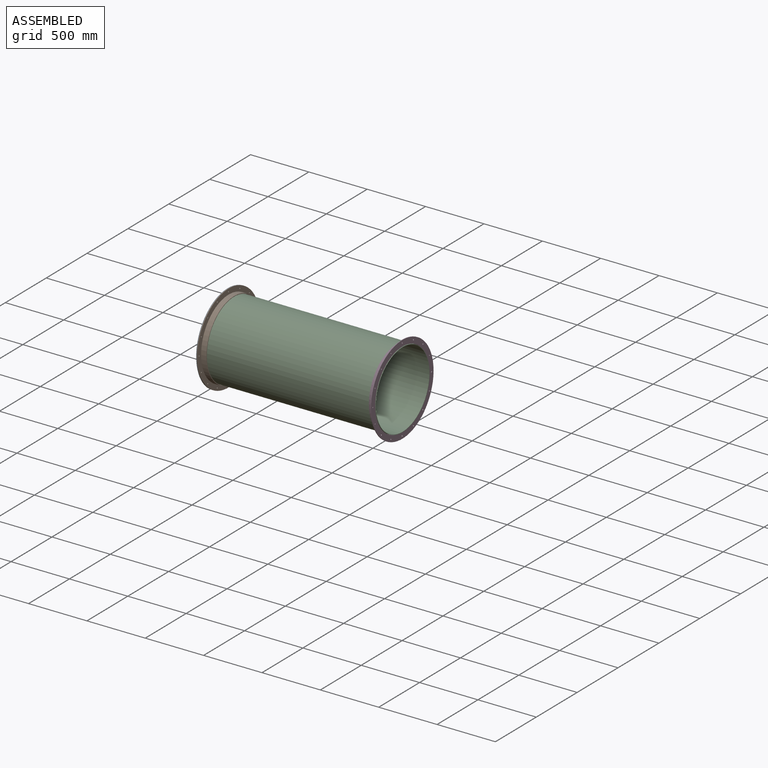
[diagram: assembled view]
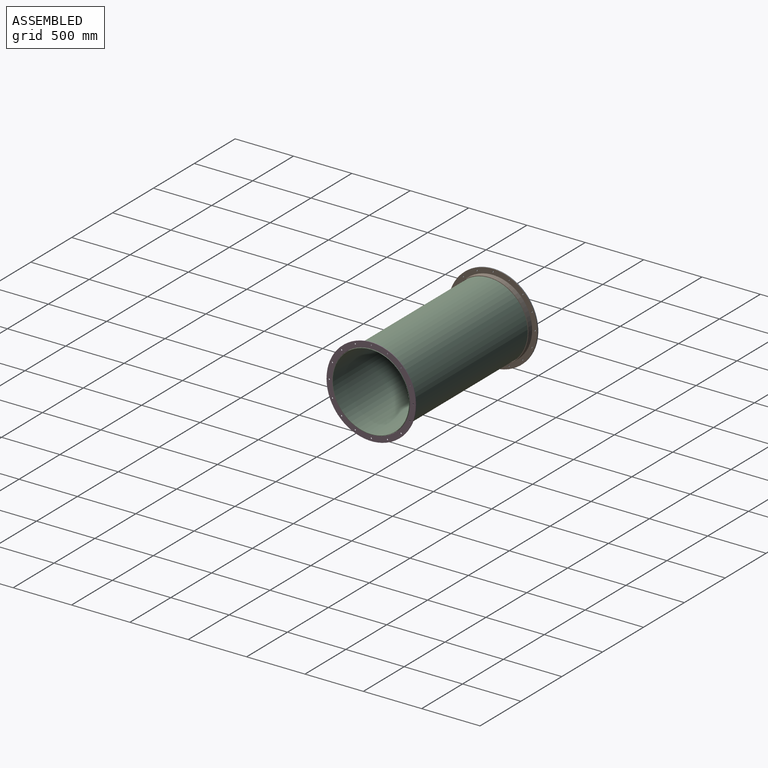
[diagram: assembled view, second angle]
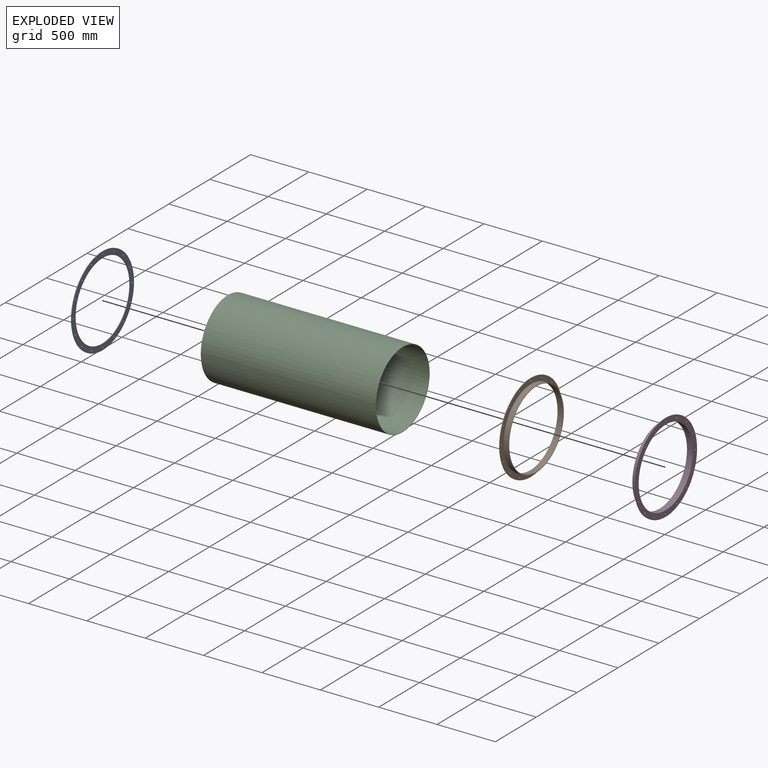
[diagram: exploded view]
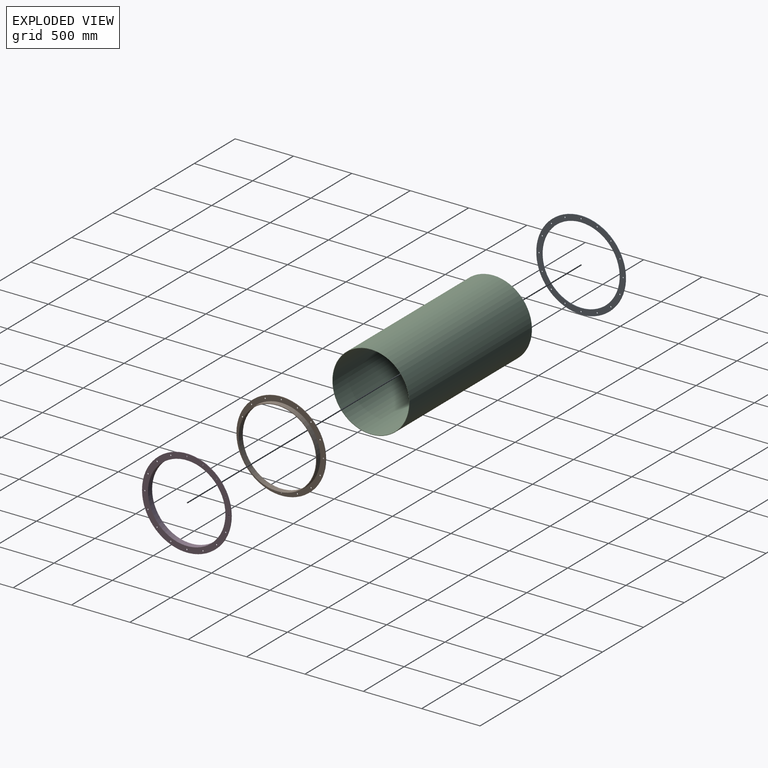
[diagram: exploded view, second angle]
ASSEMBLY  parts=4 mates=3
PART A: 20 faces, bbox 765.3x765.3x4.8 mm
  f0: cylinder r=5.56mm len=11.11mm, axis (0,0,-1), area 166.3mm2, adj f18,f19
  f1: cylinder r=5.56mm len=11.11mm, axis (0,0,-1), area 166.3mm2, adj f18,f19
  f2: cylinder r=5.56mm len=11.11mm, axis (0,0,-1), area 166.3mm2, adj f18,f19
  f3: cylinder r=5.56mm len=11.11mm, axis (0,0,-1), area 166.3mm2, adj f18,f19
  f4: cylinder r=5.56mm len=11.11mm, axis (0,0,-1), area 166.3mm2, adj f18,f19
  f5: cylinder r=5.56mm len=11.11mm, axis (0,0,-1), area 166.3mm2, adj f18,f19
  f6: cylinder r=5.56mm len=11.11mm, axis (0,0,-1), area 166.3mm2, adj f18,f19
  f7: cylinder r=5.56mm len=11.11mm, axis (0,0,-1), area 166.3mm2, adj f18,f19
  f8: cylinder r=5.56mm len=11.11mm, axis (0,0,-1), area 166.3mm2, adj f18,f19
  f9: cylinder r=5.56mm len=11.11mm, axis (0,0,-1), area 166.3mm2, adj f18,f19
  f10: cylinder r=5.56mm len=11.11mm, axis (0,0,-1), area 166.3mm2, adj f18,f19
  f11: cylinder r=5.56mm len=11.11mm, axis (0,0,-1), area 166.3mm2, adj f18,f19
  f12: cylinder r=5.56mm len=11.11mm, axis (0,0,-1), area 166.3mm2, adj f18,f19
  f13: cylinder r=5.56mm len=11.11mm, axis (0,0,-1), area 166.3mm2, adj f18,f19
  f14: cylinder r=5.56mm len=11.11mm, axis (0,0,-1), area 166.3mm2, adj f18,f19
  f15: cylinder r=331.85mm len=663.7mm, axis (0,0,-1), area 9930.2mm2, adj f18,f19
  f16: cylinder r=5.56mm len=11.11mm, axis (0,0,-1), area 166.3mm2, adj f18,f19
  f17: cylinder r=382.65mm len=765.3mm, axis (0,0,-1), area 11450.3mm2, adj f18,f19
  f18: plane 765.3x765.3mm, normal (0,0,1), area 112477.7mm2, adj f0,f1,f2,f3,f4,f5,f6,f7
  f19: plane 765.3x765.3mm, normal (0,0,-1), area 112477.7mm2, adj f0,f1,f2,f3,f4,f5,f6,f7
PART B: 22 faces, bbox 765.3x50.8x765.3 mm
  f0: cylinder r=5.56mm len=11.11mm, axis (0,1,0), area 166.3mm2, adj f17,f18
  f1: cylinder r=5.56mm len=11.11mm, axis (0,1,0), area 166.3mm2, adj f17,f18
  f2: cylinder r=5.56mm len=11.11mm, axis (0,1,0), area 166.3mm2, adj f17,f18
  f3: cylinder r=5.56mm len=11.11mm, axis (0,1,0), area 166.3mm2, adj f17,f18
  f4: cylinder r=5.56mm len=11.11mm, axis (0,1,0), area 166.3mm2, adj f17,f18
  f5: cylinder r=5.56mm len=11.11mm, axis (0,1,0), area 166.3mm2, adj f17,f18
  f6: cylinder r=5.56mm len=11.11mm, axis (0,1,0), area 166.3mm2, adj f17,f18
  f7: cylinder r=5.56mm len=11.11mm, axis (0,1,0), area 166.3mm2, adj f17,f18
  f8: cylinder r=5.56mm len=11.11mm, axis (0,1,0), area 166.3mm2, adj f17,f18
  f9: cylinder r=5.56mm len=11.11mm, axis (0,1,0), area 166.3mm2, adj f17,f18
  f10: cylinder r=5.56mm len=11.11mm, axis (0,1,0), area 166.3mm2, adj f17,f18
  f11: cylinder r=5.56mm len=11.11mm, axis (0,1,0), area 166.3mm2, adj f17,f18
  f12: cylinder r=5.56mm len=11.11mm, axis (0,1,0), area 166.3mm2, adj f17,f18
  f13: cylinder r=5.56mm len=11.11mm, axis (0,1,0), area 166.3mm2, adj f17,f18
  f14: cylinder r=5.56mm len=11.11mm, axis (0,1,0), area 166.3mm2, adj f17,f18
  f15: cylinder r=5.56mm len=11.11mm, axis (0,1,0), area 166.3mm2, adj f17,f18
  f16: cylinder r=382.65mm len=765.3mm, axis (0,1,0), area 11450.3mm2, adj f17,f18
  f17: plane 765.3x765.3mm, normal (0,-1,0), area 102476.2mm2, adj f0,f1,f2,f3,f4,f5,f6,f7
  f18: plane 765.3x765.3mm, normal (0,1,0), area 112477.7mm2, adj f0,f1,f2,f3,f4,f5,f6,f7
  f19: cylinder r=331.85mm len=663.7mm, axis (0,1,0), area 105922.1mm2, adj f18,f21
  f20: cylinder r=336.61mm len=673.23mm, axis (0,1,0), area 97369.5mm2, adj f17,f21
  f21: plane 673.23x673.23mm, normal (0,-1,0), area 10001.5mm2, adj f19,f20
PART C: 4 faces, bbox 1498.6x660.4x660.4 mm
  f0: plane 660.4x660.4mm, normal (1,0,0), area 7051.2mm2, adj f1,f2
  f1: cylinder r=326.78mm len=1498.6mm, axis (-1,0,0), area 3076989.3mm2, adj f0,f3
  f2: cylinder r=330.2mm len=1498.6mm, axis (-1,0,0), area 3109157.1mm2, adj f0,f3
  f3: plane 660.4x660.4mm, normal (-1,0,0), area 7051.2mm2, adj f1,f2
PART D: same geometry as B
PLACE A rot(axis=(0.71,0,0.71),180deg) t=(-383.98,196.63,-23.49)mm
PLACE B rot(axis=(0.58,-0.58,0.58),120deg) t=(-379.22,196.63,-23.49)mm
PLACE C t=(-381.6,196.63,-23.49)mm
PLACE D rot(axis=(0.58,0.58,-0.58),120deg) t=(1113.83,196.63,-23.49)mm
MATE fastened D.f19 <-> C.f2  axis (1,0,0) through (1113.83,196.63,-23.49)mm
MATE fastened A.f15 <-> B.f19  axis (1,0,0) through (-379.22,196.63,-23.49)mm
MATE fastened A.f15 <-> C.f2  axis (-1,0,0) through (-381.6,196.63,-23.49)mm
